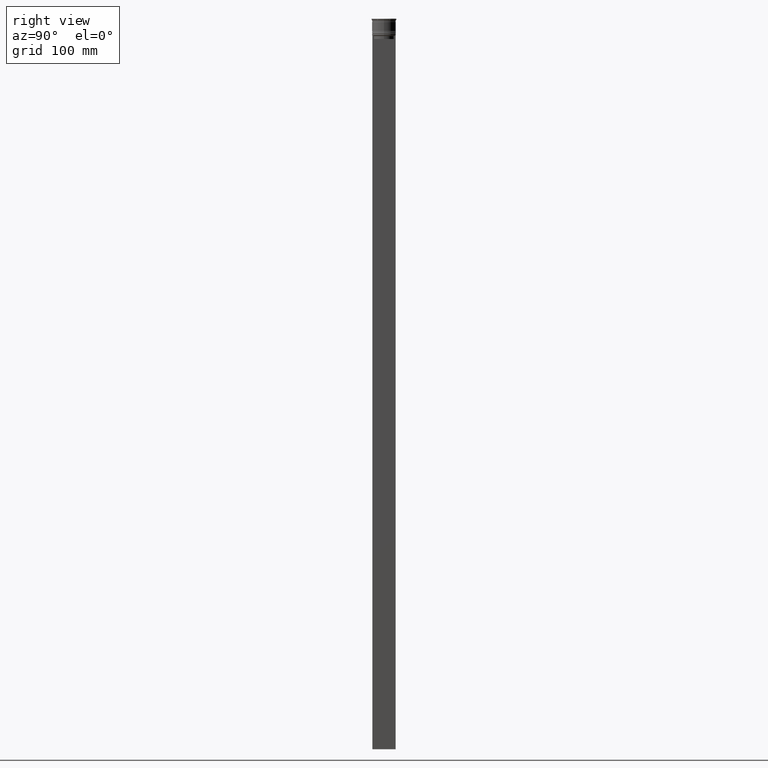
[diagram: clean part render]
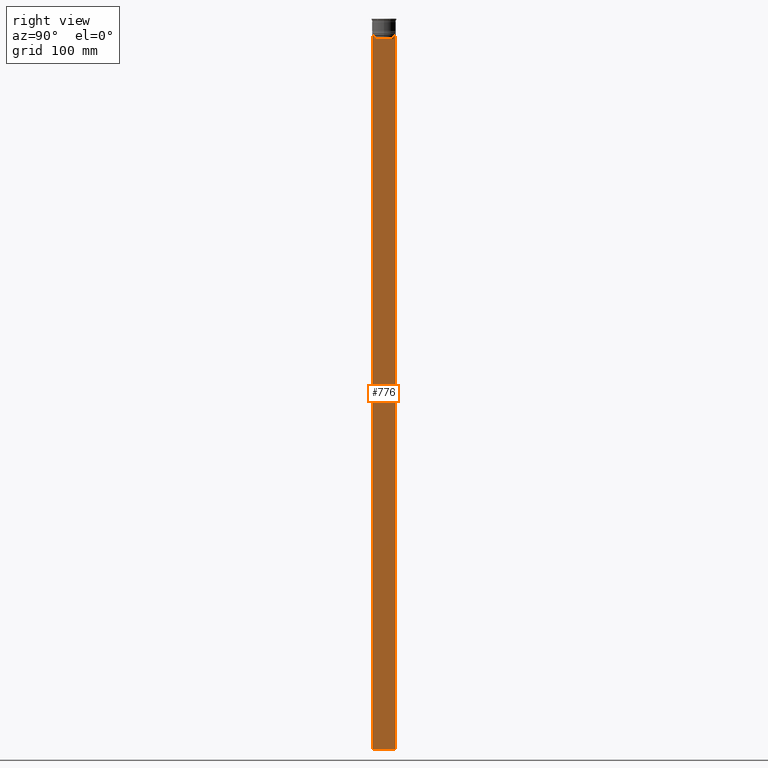
[diagram: same view with one face highlighted and labeled with its STEP entity id]
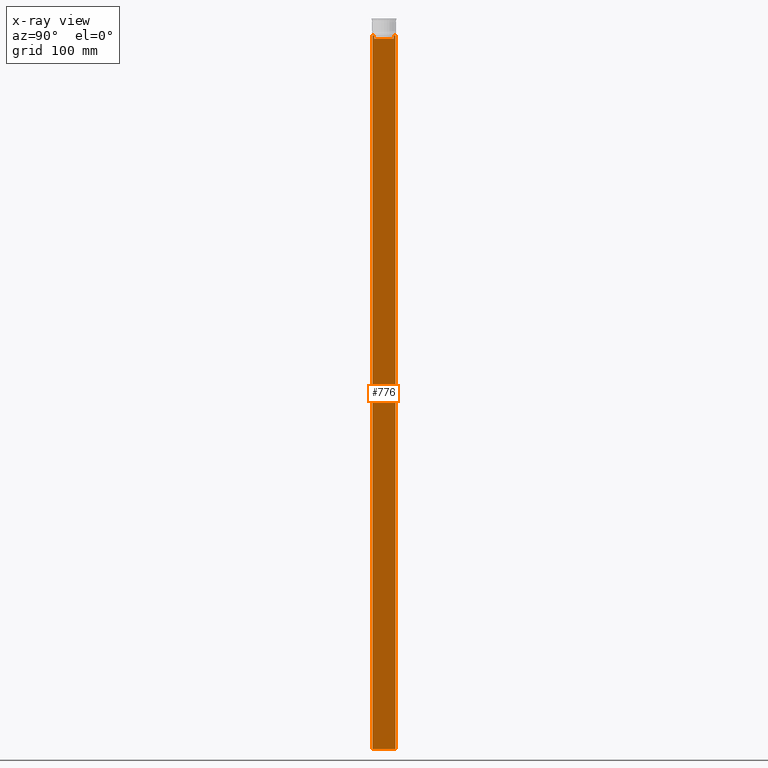
[diagram: x-ray of the same camera — body ghosted, the highlighted face saturated]
A machine part, right view. The second image highlights one B-rep face of the part: STEP entity #776.
The next image is the same camera in x-ray: the body ghosted, the highlighted face saturated — about 0% of this face is hidden behind the body in this view.
In plain terms, the highlighted planar face has unit normal (-1, 0, 0).
Its self-contained STEP definition (entity closure, byte-faithful):
#41 = VERTEX_POINT ( 'NONE', #479 ) ;
#50 = VECTOR ( 'NONE', #1782, 1000.000000000000000 ) ;
#65 = VERTEX_POINT ( 'NONE', #2059 ) ;
#80 = CARTESIAN_POINT ( 'NONE',  ( 0.4999999999999998890, 8.885943956609230199, -14.00000000000000178 ) ) ;
#102 = B_SPLINE_CURVE_WITH_KNOTS ( 'NONE', 3,
 ( #1076, #1244, #449, #645 ),
 .UNSPECIFIED., .F., .F.,
 ( 4, 4 ),
 ( 0.03898465126933130243, 0.03969388910599658260 ),
 .UNSPECIFIED. ) ;
#202 = LINE ( 'NONE', #820, #340 ) ;
#211 = EDGE_CURVE ( 'NONE', #65, #518, #1921, .T. ) ;
#218 = CARTESIAN_POINT ( 'NONE',  ( 0.4999999999999998890, -8.385105843100616241, -14.50000000000000000 ) ) ;
#224 = VECTOR ( 'NONE', #744, 1000.000000000000000 ) ;
#234 = CARTESIAN_POINT ( 'NONE',  ( 0.4999999999999998890, -9.749999999999998224, 5.525624189766635830 ) ) ;
#311 = EDGE_CURVE ( 'NONE', #2037, #2204, #1793, .T. ) ;
#340 = VECTOR ( 'NONE', #1560, 1000.000000000000000 ) ;
#353 = LINE ( 'NONE', #2542, #1511 ) ;
#368 = CARTESIAN_POINT ( 'NONE',  ( 0.4999999999999998890, 9.750000000000001776, 5.525624189766635830 ) ) ;
#394 = FACE_OUTER_BOUND ( 'NONE', #1932, .T. ) ;
#449 = CARTESIAN_POINT ( 'NONE',  ( 0.4999999999999998890, -8.719005764482787413, -14.16667454151160044 ) ) ;
#479 = CARTESIAN_POINT ( 'NONE',  ( 0.4999999999999998890, -8.885943956609230199, -14.00000000000000178 ) ) ;
#518 = VERTEX_POINT ( 'NONE', #80 ) ;
#539 = ORIENTED_EDGE ( 'NONE', *, *, #311, .T. ) ;
#559 = VERTEX_POINT ( 'NONE', #1306 ) ;
#589 = DIRECTION ( 'NONE',  ( 0.000000000000000000, 1.000000000000000000, 0.000000000000000000 ) ) ;
#645 = CARTESIAN_POINT ( 'NONE',  ( 0.4999999999999998890, -8.885943956609230199, -14.00000000000000178 ) ) ;
#702 = ORIENTED_EDGE ( 'NONE', *, *, #1168, .T. ) ;
#705 = LINE ( 'NONE', #1084, #224 ) ;
#744 = DIRECTION ( 'NONE',  ( 0.000000000000000000, -1.000000000000000000, 0.000000000000000000 ) ) ;
#776 = ADVANCED_FACE ( 'NONE', ( #394 ), #1187, .F. ) ;
#783 = DIRECTION ( 'NONE',  ( -0.000000000000000000, -0.000000000000000000, 1.000000000000000000 ) ) ;
#809 = CARTESIAN_POINT ( 'NONE',  ( 0.4999999999999998890, -8.385105843100616241, 0.000000000000000000 ) ) ;
#820 = CARTESIAN_POINT ( 'NONE',  ( 0.4999999999999998890, -9.749999999999998224, 5.525624189766635830 ) ) ;
#946 = DIRECTION ( 'NONE',  ( 0.000000000000000000, -1.000000000000000000, 0.000000000000000000 ) ) ;
#962 = ORIENTED_EDGE ( 'NONE', *, *, #2364, .T. ) ;
#969 = CARTESIAN_POINT ( 'NONE',  ( 0.4999999999999998890, 8.385105843100616241, -14.50000000000000000 ) ) ;
#1076 = CARTESIAN_POINT ( 'NONE',  ( 0.4999999999999998890, -8.385105843100616241, -14.50000000000000000 ) ) ;
#1084 = CARTESIAN_POINT ( 'NONE',  ( 0.4999999999999998890, -9.749999999999998224, -14.00000000000000178 ) ) ;
#1091 = VECTOR ( 'NONE', #783, 1000.000000000000000 ) ;
#1168 = EDGE_CURVE ( 'NONE', #2388, #1231, #1185, .T. ) ;
#1185 = LINE ( 'NONE', #809, #1091 ) ;
#1187 = PLANE ( 'NONE',  #2139 ) ;
#1219 = VECTOR ( 'NONE', #946, 1000.000000000000000 ) ;
#1231 = VERTEX_POINT ( 'NONE', #218 ) ;
#1239 = DIRECTION ( 'NONE',  ( -1.000000000000000000, 0.000000000000000000, 0.000000000000000000 ) ) ;
#1244 = CARTESIAN_POINT ( 'NONE',  ( 0.4999999999999998890, -8.552060194457768105, -14.33334167772667556 ) ) ;
#1306 = CARTESIAN_POINT ( 'NONE',  ( 0.4999999999999998890, -9.749999999999998224, -14.00000000000000178 ) ) ;
#1315 = LINE ( 'NONE', #1933, #2342 ) ;
#1334 = B_SPLINE_CURVE_WITH_KNOTS ( 'NONE', 3,
 ( #1582, #2372, #1766, #1383 ),
 .UNSPECIFIED., .F., .F.,
 ( 4, 4 ),
 ( 0.01511546479386908018, 0.01582316445439079997 ),
 .UNSPECIFIED. ) ;
#1383 = CARTESIAN_POINT ( 'NONE',  ( 0.4999999999999998890, 8.385105843100616241, -14.50000000000000000 ) ) ;
#1389 = CARTESIAN_POINT ( 'NONE',  ( 0.4999999999999998890, -9.749999999999998224, -614.0000000000000000 ) ) ;
#1476 = CARTESIAN_POINT ( 'NONE',  ( 0.4999999999999998890, 8.385105843100616241, -17.00000000000000000 ) ) ;
#1487 = ORIENTED_EDGE ( 'NONE', *, *, #1501, .T. ) ;
#1501 = EDGE_CURVE ( 'NONE', #559, #1561, #202, .T. ) ;
#1507 = ORIENTED_EDGE ( 'NONE', *, *, #1697, .T. ) ;
#1511 = VECTOR ( 'NONE', #589, 1000.000000000000000 ) ;
#1521 = EDGE_CURVE ( 'NONE', #65, #2150, #2189, .T. ) ;
#1560 = DIRECTION ( 'NONE',  ( 0.000000000000000000, 0.000000000000000000, -1.000000000000000000 ) ) ;
#1561 = VERTEX_POINT ( 'NONE', #1389 ) ;
#1579 = CARTESIAN_POINT ( 'NONE',  ( 0.4999999999999998890, -8.385105843100616241, -17.00000000000000000 ) ) ;
#1582 = CARTESIAN_POINT ( 'NONE',  ( 0.4999999999999998890, 8.885943956609230199, -14.00000000000000178 ) ) ;
#1591 = DIRECTION ( 'NONE',  ( 0.000000000000000000, 0.000000000000000000, 1.000000000000000000 ) ) ;
#1619 = ORIENTED_EDGE ( 'NONE', *, *, #211, .T. ) ;
#1697 = EDGE_CURVE ( 'NONE', #1231, #41, #102, .T. ) ;
#1766 = CARTESIAN_POINT ( 'NONE',  ( 0.4999999999999998890, 8.552060201981378285, -14.33334167021640582 ) ) ;
#1782 = DIRECTION ( 'NONE',  ( 0.000000000000000000, 0.000000000000000000, -1.000000000000000000 ) ) ;
#1793 = LINE ( 'NONE', #1811, #1803 ) ;
#1803 = VECTOR ( 'NONE', #2188, 1000.000000000000000 ) ;
#1811 = CARTESIAN_POINT ( 'NONE',  ( 0.4999999999999998890, 8.385105843100616241, 0.000000000000000000 ) ) ;
#1817 = ORIENTED_EDGE ( 'NONE', *, *, #2242, .T. ) ;
#1840 = CARTESIAN_POINT ( 'NONE',  ( 0.4999999999999998890, 9.750000000000001776, -614.0000000000000000 ) ) ;
#1921 = LINE ( 'NONE', #1938, #1219 ) ;
#1932 = EDGE_LOOP ( 'NONE', ( #1619, #2354, #539, #962, #702, #1507, #1817, #1487, #2584, #2202 ) ) ;
#1933 = CARTESIAN_POINT ( 'NONE',  ( 0.4999999999999998890, 8.400000000000003908, -17.00000000000000000 ) ) ;
#1938 = CARTESIAN_POINT ( 'NONE',  ( 0.4999999999999998890, -9.749999999999998224, -14.00000000000000178 ) ) ;
#2037 = VERTEX_POINT ( 'NONE', #969 ) ;
#2038 = EDGE_CURVE ( 'NONE', #518, #2037, #1334, .T. ) ;
#2059 = CARTESIAN_POINT ( 'NONE',  ( 0.4999999999999998890, 9.750000000000001776, -14.00000000000000178 ) ) ;
#2115 = DIRECTION ( 'NONE',  ( 0.000000000000000000, -1.000000000000000000, 0.000000000000000000 ) ) ;
#2139 = AXIS2_PLACEMENT_3D ( 'NONE', #234, #1239, #1591 ) ;
#2150 = VERTEX_POINT ( 'NONE', #1840 ) ;
#2188 = DIRECTION ( 'NONE',  ( 0.000000000000000000, 0.000000000000000000, -1.000000000000000000 ) ) ;
#2189 = LINE ( 'NONE', #368, #50 ) ;
#2202 = ORIENTED_EDGE ( 'NONE', *, *, #1521, .F. ) ;
#2204 = VERTEX_POINT ( 'NONE', #1476 ) ;
#2242 = EDGE_CURVE ( 'NONE', #41, #559, #705, .T. ) ;
#2342 = VECTOR ( 'NONE', #2115, 1000.000000000000000 ) ;
#2354 = ORIENTED_EDGE ( 'NONE', *, *, #2038, .T. ) ;
#2364 = EDGE_CURVE ( 'NONE', #2204, #2388, #1315, .T. ) ;
#2372 = CARTESIAN_POINT ( 'NONE',  ( 0.4999999999999998890, 8.719005771582347464, -14.16667453442325453 ) ) ;
#2388 = VERTEX_POINT ( 'NONE', #1579 ) ;
#2492 = EDGE_CURVE ( 'NONE', #1561, #2150, #353, .T. ) ;
#2542 = CARTESIAN_POINT ( 'NONE',  ( 0.4999999999999998890, -9.749999999999998224, -614.0000000000000000 ) ) ;
#2584 = ORIENTED_EDGE ( 'NONE', *, *, #2492, .T. ) ;